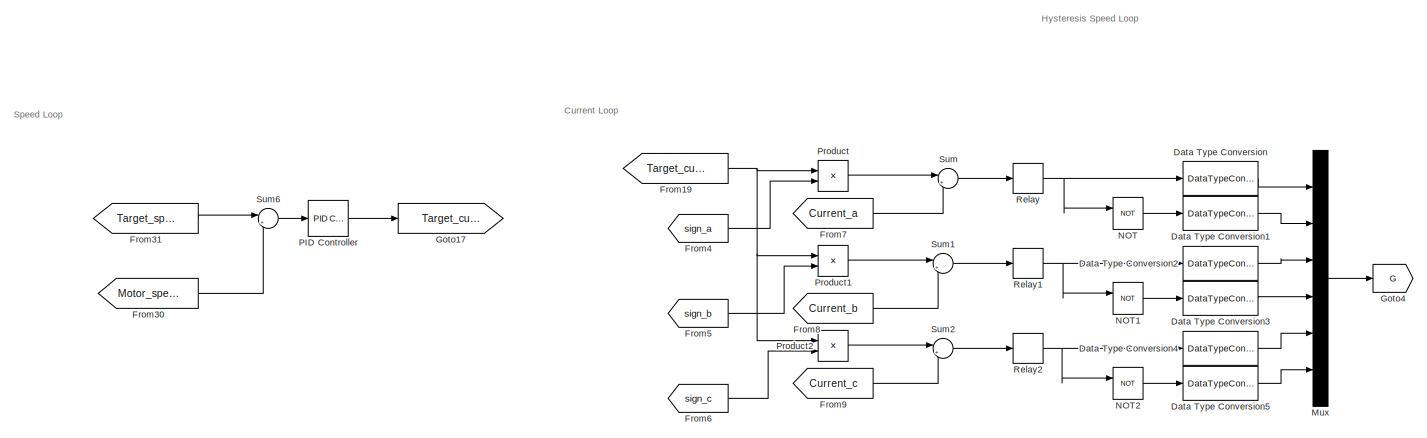
[diagram: root canvas - part 1/3, top left region]
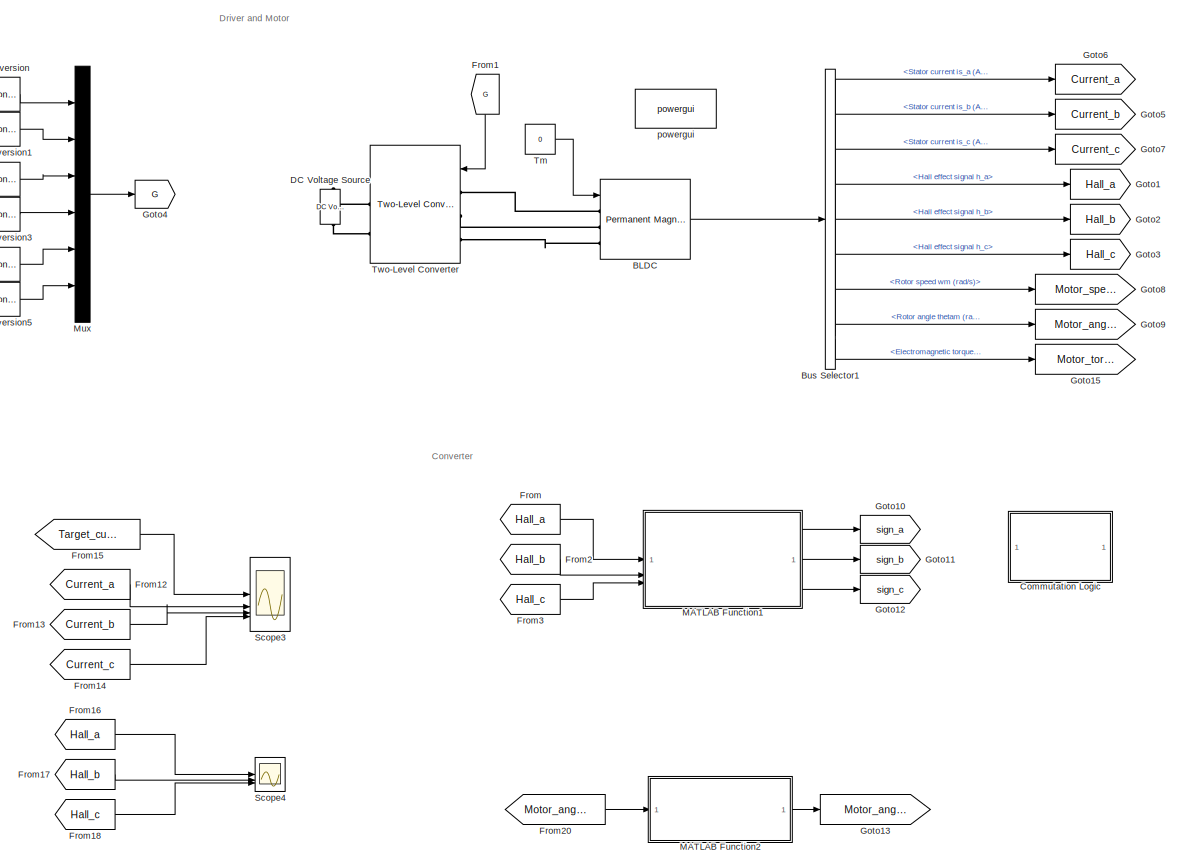
[diagram: root canvas - part 2/3, right side, full height]
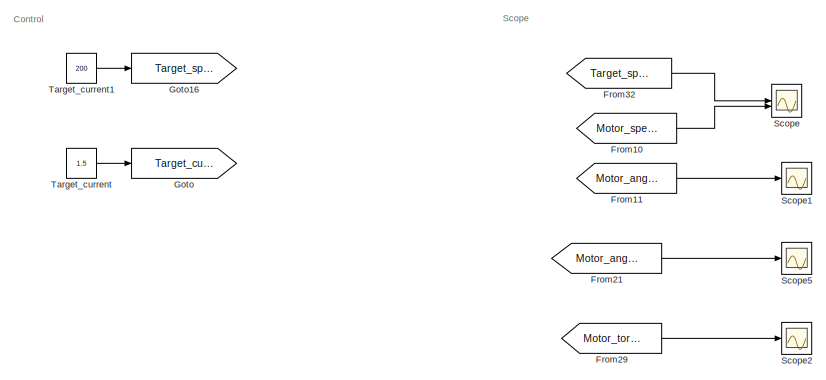
[diagram: root canvas - part 3/3, bottom left region]
MODEL slx_ee3110d98787
KIND model
CONFIG AbsTol = auto
CONFIG EnableMultiTasking = off
CONFIG FixedStep = 1e-5
CONFIG MaxStep = auto
CONFIG MinStep = auto
CONFIG RelTol = 1e-3
CONFIG SampleTimeConstraint = Unconstrained
CONFIG SolverName = FixedStepDiscrete
CONFIG StartTime = 0.0
CONFIG StopTime = 2
BLOCK [Reference] BLDC  REF=spsPermanentMagnetSynchronousMachineLib/Permanent Magnet
Synchronous Machine
  SourceBlock = spsPermanentMagnetSynchronousMachineLib/Permanent Magnet\nSynchronous Machine
  SourceType = Permanent Magnet Synchronous Machine
BLOCK [BusSelector] Bus Selector1
  NameLocation = top
  OutputSignals = Stator current is_a (A),Stator current is_b (A),Stator current is_c (A),Hall effect signal h_a,Hall effect signal h_b,Hall effect signal h_c,Rotor speed wm (rad/s),Rotor angle thetam (rad),Electromagnetic torque Te (N*m)
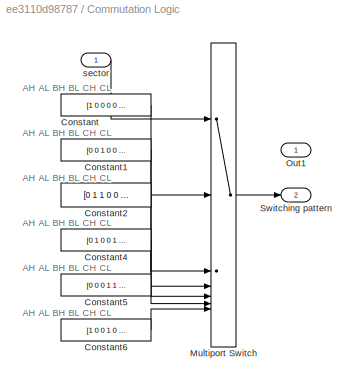
BLOCK [SubSystem] Commutation Logic
  Commented = on
  ShowPortLabels = none
BLOCK [Outport] Commutation Logic/  Switching pattern
  Port = 2
  VectorParamsAs1DForOutWhenUnconnected = off
BLOCK [Constant] Commutation Logic/Constant
  Value = [1 0 0 0 0 1]
BLOCK [Constant] Commutation Logic/Constant1
  Value = [0 0 1 0 0 1]
BLOCK [Constant] Commutation Logic/Constant2
  Value = [0 1 1 0 0 0]
BLOCK [Constant] Commutation Logic/Constant4
  Value = [0 1 0 0 1 0]
BLOCK [Constant] Commutation Logic/Constant5
  Value = [0 0 0 1 1 0]
BLOCK [Constant] Commutation Logic/Constant6
  Value = [1 0 0 1 0 0]
BLOCK [MultiPortSwitch] Commutation Logic/Multiport Switch
  InputSameDT = off
  Inputs = 6
  SaturateOnIntegerOverflow = off
BLOCK [Outport] Commutation Logic/Out1
BLOCK [Inport] Commutation Logic/sector
  NameLocation = top
BLOCK [Reference] DC Voltage Source  REF=spsDCVoltageSourceLib/DC Voltage Source
  SourceBlock = spsDCVoltageSourceLib/DC Voltage Source
  SourceType = DC Voltage Source
BLOCK [DataTypeConversion] Data Type Conversion
  RndMeth = Floor
  SaturateOnIntegerOverflow = off
BLOCK [DataTypeConversion] Data Type Conversion1
  RndMeth = Floor
  SaturateOnIntegerOverflow = off
BLOCK [DataTypeConversion] Data Type Conversion2
  RndMeth = Floor
  SaturateOnIntegerOverflow = off
BLOCK [DataTypeConversion] Data Type Conversion3
  RndMeth = Floor
  SaturateOnIntegerOverflow = off
BLOCK [DataTypeConversion] Data Type Conversion4
  RndMeth = Floor
  SaturateOnIntegerOverflow = off
BLOCK [DataTypeConversion] Data Type Conversion5
  RndMeth = Floor
  SaturateOnIntegerOverflow = off
BLOCK [From] From
  GotoTag = Hall_a
BLOCK [From] From1
  GotoTag = G
  NameLocation = left
BLOCK [From] From10
  GotoTag = Motor_speed
BLOCK [From] From11
  Commented = on
  GotoTag = Motor_angle
BLOCK [From] From12
  GotoTag = Current_a
BLOCK [From] From13
  GotoTag = Current_b
BLOCK [From] From14
  GotoTag = Current_c
BLOCK [From] From15
  GotoTag = Target_current
BLOCK [From] From16
  GotoTag = Hall_a
BLOCK [From] From17
  GotoTag = Hall_b
BLOCK [From] From18
  GotoTag = Hall_c
BLOCK [From] From19
  GotoTag = Target_current
BLOCK [From] From2
  GotoTag = Hall_b
BLOCK [From] From20
  GotoTag = Motor_angle
BLOCK [From] From21
  GotoTag = Motor_angle_pi
BLOCK [From] From29
  GotoTag = Motor_torque
BLOCK [From] From3
  GotoTag = Hall_c
BLOCK [From] From30
  GotoTag = Motor_speed
BLOCK [From] From31
  GotoTag = Target_speed
BLOCK [From] From32
  GotoTag = Target_speed
BLOCK [From] From4
  GotoTag = sign_a
BLOCK [From] From5
  GotoTag = sign_b
BLOCK [From] From6
  GotoTag = sign_c
BLOCK [From] From7
  GotoTag = Current_a
BLOCK [From] From8
  GotoTag = Current_b
BLOCK [From] From9
  GotoTag = Current_c
BLOCK [Goto] Goto
  Commented = on
  GotoTag = Target_current
BLOCK [Goto] Goto1
  GotoTag = Hall_a
BLOCK [Goto] Goto10
  GotoTag = sign_a
  NameLocation = top
BLOCK [Goto] Goto11
  GotoTag = sign_b
  NameLocation = top
BLOCK [Goto] Goto12
  GotoTag = sign_c
  NameLocation = top
BLOCK [Goto] Goto13
  GotoTag = Motor_angle_pi
BLOCK [Goto] Goto15
  GotoTag = Motor_torque
BLOCK [Goto] Goto16
  GotoTag = Target_speed
BLOCK [Goto] Goto17
  GotoTag = Target_current
BLOCK [Goto] Goto2
  GotoTag = Hall_b
BLOCK [Goto] Goto3
  GotoTag = Hall_c
BLOCK [Goto] Goto4
  GotoTag = G
  NameLocation = top
BLOCK [Goto] Goto5
  GotoTag = Current_b
BLOCK [Goto] Goto6
  GotoTag = Current_a
BLOCK [Goto] Goto7
  GotoTag = Current_c
BLOCK [Goto] Goto8
  GotoTag = Motor_speed
BLOCK [Goto] Goto9
  GotoTag = Motor_angle
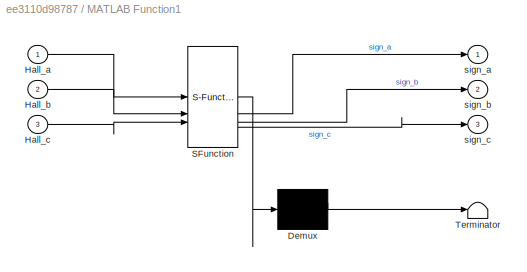
BLOCK [SubSystem] MATLAB Function1
  ErrorFcn = Stateflow.Translate.translate
  LibrarySourceBlock = simulink/User-Defined\nFunctions/MATLAB Function
  PermitHierarchicalResolution = ExplicitOnly
  SFBlockType = MATLAB Function
  TreatAsAtomicUnit = on
BLOCK [Demux] MATLAB Function1/ Demux 
  Outputs = 1
BLOCK [S-Function] MATLAB Function1/ SFunction 
  EnableBusSupport = on
  FunctionName = sf_sfun
  PortCounts = [3 4]
  SFcnIsStateOwnerBlock = off
  SFunctionDeploymentMode = off
  Tag = Stateflow S-Function 2
BLOCK [Terminator] MATLAB Function1/ Terminator 
BLOCK [Inport] MATLAB Function1/Hall_a
BLOCK [Inport] MATLAB Function1/Hall_b
  Port = 2
BLOCK [Inport] MATLAB Function1/Hall_c
  Port = 3
BLOCK [Outport] MATLAB Function1/sign_a
BLOCK [Outport] MATLAB Function1/sign_b
  Port = 2
BLOCK [Outport] MATLAB Function1/sign_c
  Port = 3
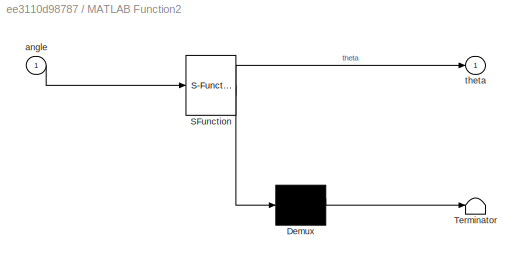
BLOCK [SubSystem] MATLAB Function2
  ErrorFcn = Stateflow.Translate.translate
  PermitHierarchicalResolution = ExplicitOnly
  SFBlockType = MATLAB Function
  TreatAsAtomicUnit = on
BLOCK [Demux] MATLAB Function2/ Demux 
  Outputs = 1
BLOCK [S-Function] MATLAB Function2/ SFunction 
  EnableBusSupport = on
  FunctionName = sf_sfun
  PortCounts = [1 2]
  SFcnIsStateOwnerBlock = off
  SFunctionDeploymentMode = off
  Tag = Stateflow S-Function 1
BLOCK [Terminator] MATLAB Function2/ Terminator 
BLOCK [Inport] MATLAB Function2/angle
BLOCK [Outport] MATLAB Function2/theta
BLOCK [Mux] Mux
  DisplayOption = bar
  Inputs = 6
BLOCK [Logic] NOT
  AllPortsSameDT = off
  IconShape = distinctive
  Operator = NOT
  OutDataTypeStr = boolean
BLOCK [Logic] NOT1
  AllPortsSameDT = off
  IconShape = distinctive
  Operator = NOT
  OutDataTypeStr = boolean
BLOCK [Logic] NOT2
  AllPortsSameDT = off
  IconShape = distinctive
  Operator = NOT
  OutDataTypeStr = boolean
BLOCK [Reference] PID Controller  REF=slpidlib/PID Controller
  LibrarySourceBlock = simulink/Continuous/PID Controller
  SourceBlock = slpidlib/PID Controller
  SourceType = PID 1dof
BLOCK [Product] Product
BLOCK [Product] Product1
BLOCK [Product] Product2
BLOCK [Relay] Relay
  OffSwitchValue = -0.1
  OnSwitchValue = 0.1
BLOCK [Relay] Relay1
  OffSwitchValue = -0.1
  OnSwitchValue = 0.1
BLOCK [Relay] Relay2
  OffSwitchValue = -0.1
  OnSwitchValue = 0.1
BLOCK [Scope] Scope
  Floating = off
  NumInputPorts = 2
  ScopeSpecificationString = Simulink.scopes.TimeScopeBlockCfg('CurrentConfiguration', extmgr.ConfigurationSet(extmgr.Configuration('Core','General UI',true),extmgr.Configuration('Core','Source UI',true),extmgr.Configuration('Sources','WiredSimulink',true),extmgr.Configuration('Visuals','Time Domain',true,'SerializedDisplays',{struct('MinYLimReal','-25.50234','MaxYLimReal','229.52107','YLabelReal','','MinYLimMag','0.00000','M...<+1448ch>
BLOCK [Scope] Scope1
  Commented = on
  Floating = off
  NumInputPorts = 1
  ScopeSpecificationString = Simulink.scopes.TimeScopeBlockCfg('CurrentConfiguration', extmgr.ConfigurationSet(extmgr.Configuration('Core','General UI',true),extmgr.Configuration('Core','Source UI',true),extmgr.Configuration('Sources','WiredSimulink',true,'DataLoggingVariableName','ScopeData1'),extmgr.Configuration('Visuals','Time Domain',true,'SerializedDisplays',{struct('MinYLimReal','-49.20997','MaxYLimReal','442.88973','Y...<+1420ch>
BLOCK [Scope] Scope2
  Floating = off
  NumInputPorts = 1
  ScopeSpecificationString = Simulink.scopes.TimeScopeBlockCfg('CurrentConfiguration', extmgr.ConfigurationSet(extmgr.Configuration('Core','General UI',true),extmgr.Configuration('Core','Source UI',true),extmgr.Configuration('Sources','WiredSimulink',true,'DataLoggingVariableName','ScopeData1'),extmgr.Configuration('Visuals','Time Domain',true,'SerializedDisplays',{struct('MinYLimReal','-0.3927','MaxYLimReal','3.53429','YLabe...<+1389ch>
BLOCK [Scope] Scope3
  Floating = off
  NumInputPorts = 4
  ScopeSpecificationString = Simulink.scopes.TimeScopeBlockCfg('CurrentConfiguration', extmgr.ConfigurationSet(extmgr.Configuration('Core','General UI',true),extmgr.Configuration('Core','Source UI',true),extmgr.Configuration('Sources','WiredSimulink',true,'DataLoggingVariableName','ScopeData3'),extmgr.Configuration('Visuals','Time Domain',true,'SerializedDisplays',{struct('MinYLimReal','-25.21993','MaxYLimReal','25.2216','YLa...<+1647ch>
BLOCK [Scope] Scope4
  Floating = off
  NumInputPorts = 3
  ScopeSpecificationString = Simulink.scopes.TimeScopeBlockCfg('CurrentConfiguration', extmgr.ConfigurationSet(extmgr.Configuration('Core','General UI',true),extmgr.Configuration('Core','Source UI',true),extmgr.Configuration('Sources','WiredSimulink',true,'DataLoggingVariableName','ScopeData4'),extmgr.Configuration('Visuals','Time Domain',true,'SerializedDisplays',{struct('MinYLimReal','-0.125','MaxYLimReal','1.125','YLabelRe...<+1425ch>
BLOCK [Scope] Scope5
  Floating = off
  NumInputPorts = 1
  ScopeSpecificationString = Simulink.scopes.TimeScopeBlockCfg('CurrentConfiguration', extmgr.ConfigurationSet(extmgr.Configuration('Core','General UI',true),extmgr.Configuration('Core','Source UI',true),extmgr.Configuration('Sources','WiredSimulink',true,'DataLoggingVariableName','ScopeData5'),extmgr.Configuration('Visuals','Time Domain',true,'SerializedDisplays',{struct('MinYLimReal','-0.3927','MaxYLimReal','3.53429','YLabe...<+1389ch>
BLOCK [Sum] Sum
  Inputs = |+-
BLOCK [Sum] Sum1
  Inputs = |+-
BLOCK [Sum] Sum2
  Inputs = |+-
BLOCK [Sum] Sum6
  Inputs = |+-
BLOCK [Constant] Target_current
  Commented = on
  Value = 1.5
BLOCK [Constant] Target_current1
  Value = 200
BLOCK [Constant] Tm
  Value = 0
BLOCK [Reference] Two-Level Converter  REF=spsTwoLevelConverterLib/Two-Level Converter
  NameLocation = top
  SourceBlock = spsTwoLevelConverterLib/Two-Level Converter
  SourceType = Two-Level Converter
BLOCK [Reference] powergui  REF=spspowerguiLib/powergui
  Priority = 1
  SourceBlock = spspowerguiLib/powergui
  SourceType = PSB option menu block
ANNOTATION (root): Hysteresis Speed Loop
ANNOTATION (root): Control
ANNOTATION (root): Converter
ANNOTATION (root): Current Loop
ANNOTATION (root): Driver and Motor
ANNOTATION (root): Scope
ANNOTATION (root): Speed Loop
ANNOTATION Commutation Logic: AH AL BH BL CH CL
LINE BLDC:1 -> Bus Selector1:1
LINE Bus Selector1:1 -> Goto6:1
LINE Bus Selector1:2 -> Goto5:1
LINE Bus Selector1:3 -> Goto7:1
LINE Bus Selector1:4 -> Goto1:1
LINE Bus Selector1:5 -> Goto2:1
LINE Bus Selector1:6 -> Goto3:1
LINE Bus Selector1:7 -> Goto8:1
LINE Bus Selector1:8 -> Goto9:1
LINE Bus Selector1:9 -> Goto15:1
LINE Commutation Logic/Constant1:1 -> Commutation Logic/Multiport Switch:3
LINE Commutation Logic/Constant2:1 -> Commutation Logic/Multiport Switch:4
LINE Commutation Logic/Constant4:1 -> Commutation Logic/Multiport Switch:5
LINE Commutation Logic/Constant5:1 -> Commutation Logic/Multiport Switch:6
LINE Commutation Logic/Constant6:1 -> Commutation Logic/Multiport Switch:7
LINE Commutation Logic/Constant:1 -> Commutation Logic/Multiport Switch:2
LINE Commutation Logic/Multiport Switch:1 -> Commutation Logic/  Switching pattern:1
LINE Commutation Logic/sector:1 -> Commutation Logic/Multiport Switch:1
LINE Data Type Conversion1:1 -> Mux:2
LINE Data Type Conversion2:1 -> Mux:3
LINE Data Type Conversion3:1 -> Mux:4
LINE Data Type Conversion4:1 -> Mux:5
LINE Data Type Conversion5:1 -> Mux:6
LINE Data Type Conversion:1 -> Mux:1
LINE From10:1 -> Scope:2
LINE From11:1 -> Scope1:1
LINE From12:1 -> Scope3:2
LINE From13:1 -> Scope3:3
LINE From14:1 -> Scope3:4
LINE From15:1 -> Scope3:1
LINE From16:1 -> Scope4:1
LINE From17:1 -> Scope4:2
LINE From18:1 -> Scope4:3
NET From19:1 -> Product1:1, Product2:1, Product:1
LINE From1:1 -> Two-Level Converter:1
LINE From20:1 -> MATLAB Function2:1
LINE From21:1 -> Scope5:1
LINE From29:1 -> Scope2:1
LINE From2:1 -> MATLAB Function1:2
LINE From30:1 -> Sum6:2
LINE From31:1 -> Sum6:1
LINE From32:1 -> Scope:1
LINE From3:1 -> MATLAB Function1:3
LINE From4:1 -> Product:2
LINE From5:1 -> Product1:2
LINE From6:1 -> Product2:2
LINE From7:1 -> Sum:2
LINE From8:1 -> Sum1:2
LINE From9:1 -> Sum2:2
LINE From:1 -> MATLAB Function1:1
LINE MATLAB Function1:1 -> Goto10:1
LINE MATLAB Function1:2 -> Goto11:1
LINE MATLAB Function1:3 -> Goto12:1
LINE MATLAB Function2:1 -> Goto13:1
LINE Mux:1 -> Goto4:1
LINE NOT1:1 -> Data Type Conversion3:1
LINE NOT2:1 -> Data Type Conversion5:1
LINE NOT:1 -> Data Type Conversion1:1
LINE PID Controller:1 -> Goto17:1
LINE Product1:1 -> Sum1:1
LINE Product2:1 -> Sum2:1
LINE Product:1 -> Sum:1
NET Relay1:1 -> Data Type Conversion2:1, NOT1:1
NET Relay2:1 -> Data Type Conversion4:1, NOT2:1
NET Relay:1 -> Data Type Conversion:1, NOT:1
LINE Sum1:1 -> Relay1:1
LINE Sum2:1 -> Relay2:1
LINE Sum6:1 -> PID Controller:1
LINE Sum:1 -> Relay:1
LINE Target_current1:1 -> Goto16:1
LINE Target_current:1 -> Goto:1
LINE Tm:1 -> BLDC:1
PLINE BLDC:LConn1 -- Two-Level Converter:LConn1
PLINE BLDC:LConn2 -- Two-Level Converter:LConn2
PLINE BLDC:LConn3 -- Two-Level Converter:LConn3
PLINE DC Voltage Source:LConn1 -- Two-Level Converter:RConn2
PLINE DC Voltage Source:RConn1 -- Two-Level Converter:RConn1
note: NET lines group one-source signal fan-out (src -> all destinations, sorted); 1:1 wires keep LINE
CHART MATLAB Function2 states=1 transitions=1
  STATE_LABEL 'eML_blk_kernel()'
  STATE_LABEL 'SCRIPT:\nfunction theta = Angle_Conv(angle)\n\nn=mod(angle,pi);\n\ntheta = n;\n\n'
CHART MATLAB Function1 states=1 transitions=1
  STATE_LABEL 'eML_blk_kernel()'
  STATE_LABEL 'SCRIPT:\nfunction [sign_a,sign_b,sign_c] = fcn(Hall_a, Hall_b, Hall_c)\n\nif Hall_a==1&&Hall_b==0&&Hall_c==1\n\nsign_a=1;\nsign_b=0;\nsign_c=-1;\n\nelseif Hall_a==1&&Hall_b==0&&Hall_c==0\n\nsign_a=0;\nsign_b=1;\nsign_c=-1;\n\n\nelseif Hall_a==1&&Hall_b==1&&Hall_c==0\n\nsign_a=-1;\nsign_b=1;\nsign_c=0;\n\n\nelseif Hall_a==0&&Hall_b==1&&Hall_c==0\n\nsign_a=-1;\nsign_b=0;\nsign_c=1;\n\n\nelseif Hall_a==0&&Hall_b==1&&Hall_c==1\n\nsi...<+72ch>'
CHART  states=0 transitions=0
CHART  states=0 transitions=0
